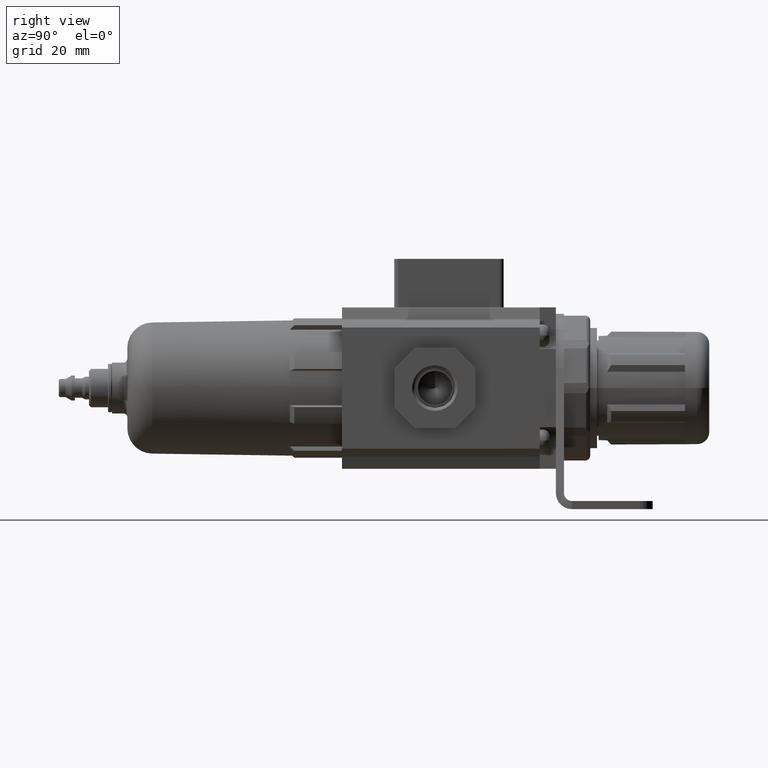
[diagram: clean part render]
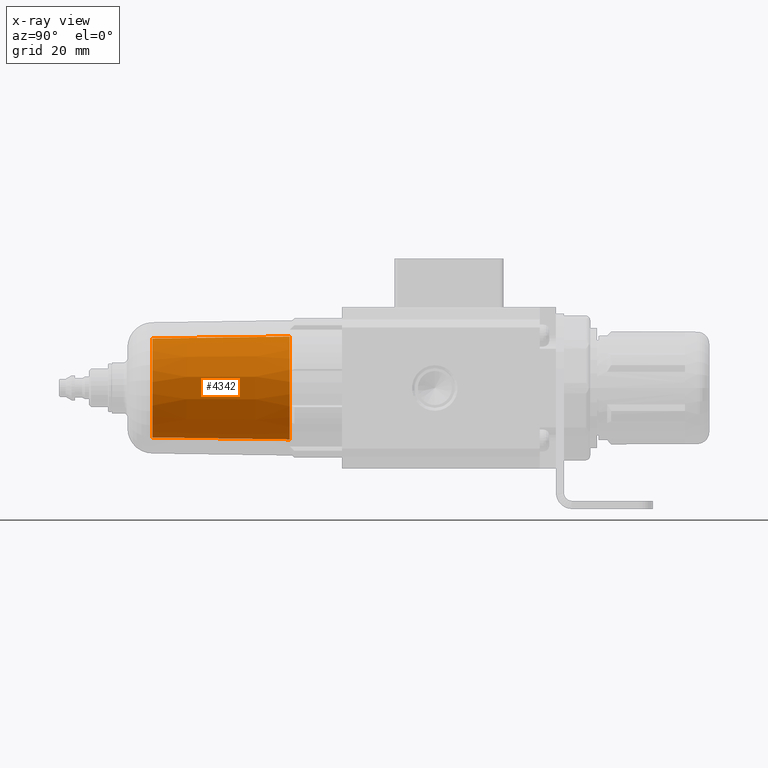
[diagram: x-ray — body ghosted, one internal face saturated and labeled with its STEP entity id]
A machine part, right view, then the same camera in x-ray: the body is ghosted and one INTERNAL B-rep face — a face not visible from any outside direction — is saturated and labeled: STEP entity #4342.
In plain terms, the highlighted conical surface has half-angle 0.841 deg.
Its self-contained STEP definition (entity closure, byte-faithful):
#289 = DIRECTION ( 'NONE',  ( 0.0000000000000000000, 1.000000000000000000, 0.0000000000000000000 ) ) ;
#475 = VERTEX_POINT ( 'NONE', #15341 ) ;
#788 = FACE_OUTER_BOUND ( 'NONE', #3930, .T. ) ;
#1250 = CARTESIAN_POINT ( 'NONE',  ( 0.0000000000000000000, -35.97064834669323800, 12.75000000000000200 ) ) ;
#1972 = CARTESIAN_POINT ( 'NONE',  ( 0.0000000000000000000, -69.98301883207196300, 0.0000000000000000000 ) ) ;
#2097 = CARTESIAN_POINT ( 'NONE',  ( 0.0000000000000000000, -76.14129985409414300, 12.16043073658292300 ) ) ;
#2440 = CIRCLE ( 'NONE', #5594, 12.25081346800066100 ) ;
#2843 = VERTEX_POINT ( 'NONE', #12192 ) ;
#3007 = LINE ( 'NONE', #4268, #12760 ) ;
#3256 = DIRECTION ( 'NONE',  ( 0.0000000000000000000, 0.0000000000000000000, 1.000000000000000000 ) ) ;
#3850 = CARTESIAN_POINT ( 'NONE',  ( 0.0000000000000000000, -35.97064834669323800, 0.0000000000000000000 ) ) ;
#3930 = EDGE_LOOP ( 'NONE', ( #8613, #9255, #15128, #7047 ) ) ;
#4215 = EDGE_CURVE ( 'NONE', #475, #7947, #15897, .T. ) ;
#4268 = CARTESIAN_POINT ( 'NONE',  ( 1.489223257780936800E-015, -76.14129985409414300, -12.16043073658292300 ) ) ;
#4342 = ADVANCED_FACE ( 'NONE', ( #788 ), #10149, .F. ) ;
#5018 = AXIS2_PLACEMENT_3D ( 'NONE', #13019, #289, #5389 ) ;
#5110 = DIRECTION ( 'NONE',  ( 0.0000000000000000000, 0.0000000000000000000, 1.000000000000000000 ) ) ;
#5389 = DIRECTION ( 'NONE',  ( 0.0000000000000000000, 0.0000000000000000000, 1.000000000000000000 ) ) ;
#5594 = AXIS2_PLACEMENT_3D ( 'NONE', #1972, #10862, #3256 ) ;
#6063 = EDGE_CURVE ( 'NONE', #2843, #475, #3007, .T. ) ;
#7047 = ORIENTED_EDGE ( 'NONE', *, *, #4215, .F. ) ;
#7947 = VERTEX_POINT ( 'NONE', #1250 ) ;
#8096 = LINE ( 'NONE', #2097, #14451 ) ;
#8533 = CARTESIAN_POINT ( 'NONE',  ( 0.0000000000000000000, -69.98301883207196300, 12.25081346800066100 ) ) ;
#8613 = ORIENTED_EDGE ( 'NONE', *, *, #6063, .F. ) ;
#9255 = ORIENTED_EDGE ( 'NONE', *, *, #15183, .F. ) ;
#9715 = DIRECTION ( 'NONE',  ( 0.0000000000000000000, 0.9998923158542695200, 0.01467503647646813600 ) ) ;
#10149 = CONICAL_SURFACE ( 'NONE', #5018, 12.16043073658292300, 0.01467556325541401400 ) ;
#10679 = EDGE_CURVE ( 'NONE', #13155, #7947, #8096, .T. ) ;
#10862 = DIRECTION ( 'NONE',  ( 0.0000000000000000000, 1.000000000000000000, 0.0000000000000000000 ) ) ;
#12192 = CARTESIAN_POINT ( 'NONE',  ( 1.530858309483352400E-015, -69.98301883207196300, -12.25081346800066100 ) ) ;
#12749 = DIRECTION ( 'NONE',  ( -0.0000000000000000000, -1.000000000000000000, -0.0000000000000000000 ) ) ;
#12760 = VECTOR ( 'NONE', #13172, 1000.000000000000000 ) ;
#13019 = CARTESIAN_POINT ( 'NONE',  ( 0.0000000000000000000, -76.14129985409414300, 0.0000000000000000000 ) ) ;
#13155 = VERTEX_POINT ( 'NONE', #8533 ) ;
#13172 = DIRECTION ( 'NONE',  ( 1.797173644827735700E-018, 0.9998923158542695200, -0.01467503647646813600 ) ) ;
#13860 = AXIS2_PLACEMENT_3D ( 'NONE', #3850, #12749, #5110 ) ;
#14451 = VECTOR ( 'NONE', #9715, 1000.000000000000000 ) ;
#15128 = ORIENTED_EDGE ( 'NONE', *, *, #10679, .T. ) ;
#15183 = EDGE_CURVE ( 'NONE', #13155, #2843, #2440, .T. ) ;
#15341 = CARTESIAN_POINT ( 'NONE',  ( 1.561424668912875500E-015, -35.97064834669323800, -12.75000000000000200 ) ) ;
#15897 = CIRCLE ( 'NONE', #13860, 12.75000000000000200 ) ;